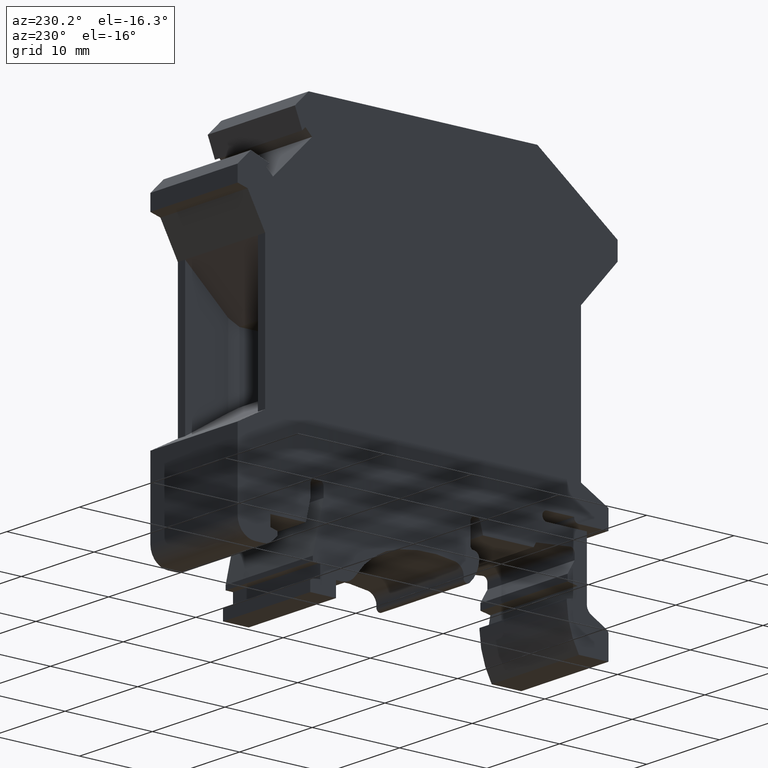
[diagram: clean part render]
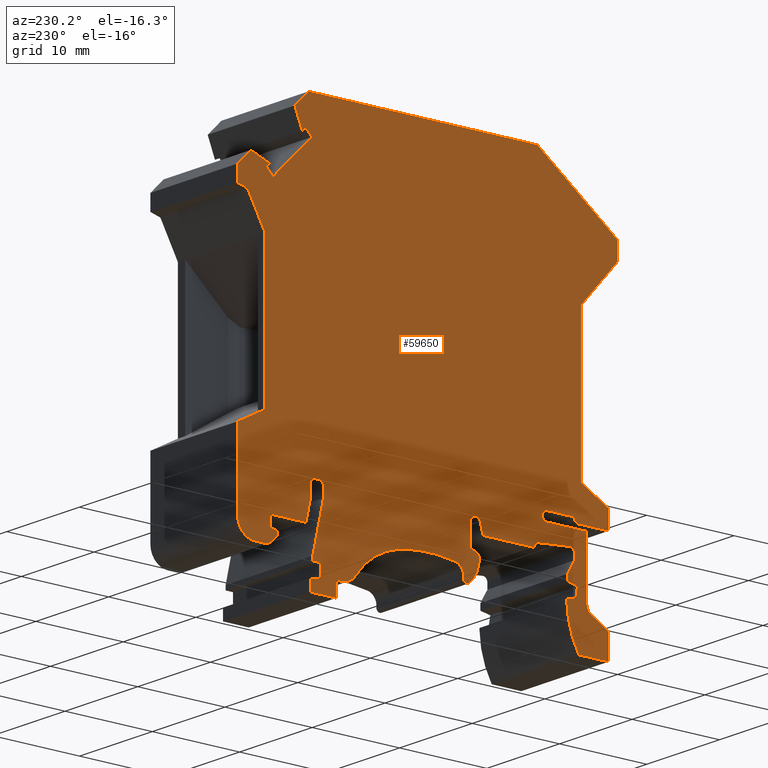
[diagram: same view with one face highlighted and labeled with its STEP entity id]
A machine part, auxiliary view. The second image highlights one B-rep face of the part: STEP entity #59650.
In plain terms, the highlighted planar face has unit normal (1, 0, 0).
Its self-contained STEP definition (entity closure, byte-faithful):
#100=CARTESIAN_POINT('',(-158.349315429515,262.087846858691,-12.));
#110=VERTEX_POINT('',#100);
#290=CARTESIAN_POINT('',(-157.82491100543,261.537846858677,-12.));
#300=VERTEX_POINT('',#290);
#330=CARTESIAN_POINT('',(-158.349315429515,261.562846858691,-12.));
#340=DIRECTION('',(0.,0.,1.));
#350=DIRECTION('',(1.,0.,0.));
#360=AXIS2_PLACEMENT_3D('',#330,#340,#350);
#370=CIRCLE('',#360,0.525000000000001);
#380=EDGE_CURVE('',#300,#110,#370,.T.);
#590=CARTESIAN_POINT('',(-158.344315429515,261.037846858691,-12.));
#600=VERTEX_POINT('',#590);
#770=CARTESIAN_POINT('',(-162.919315429515,261.037846858691,-12.));
#780=VERTEX_POINT('',#770);
#810=CARTESIAN_POINT('',(-151.979216999529,261.037846858691,-12.));
#820=DIRECTION('',(-1.,0.,0.));
#830=VECTOR('',#820,1.);
#840=LINE('',#810,#830);
#850=EDGE_CURVE('',#600,#780,#840,.T.);
#1110=CARTESIAN_POINT('',(-158.346815429515,261.56022483657,-12.));
#1120=DIRECTION('',(0.,0.,1.));
#1130=DIRECTION('',(1.,0.,0.));
#1140=AXIS2_PLACEMENT_3D('',#1110,#1120,#1130);
#1150=CIRCLE('',#1140,0.522383960103558);
#1160=EDGE_CURVE('',#600,#300,#1150,.T.);
#1370=CARTESIAN_POINT('',(-131.749315429515,260.037846858691,-12.));
#1380=VERTEX_POINT('',#1370);
#1560=CARTESIAN_POINT('',(-131.249315429515,259.537846858691,-12.));
#1570=VERTEX_POINT('',#1560);
#1600=CARTESIAN_POINT('',(-131.749315429515,259.537846858691,-12.));
#1610=DIRECTION('',(0.,0.,1.));
#1620=DIRECTION('',(1.,0.,0.));
#1630=AXIS2_PLACEMENT_3D('',#1600,#1610,#1620);
#1640=CIRCLE('',#1630,0.5);
#1650=EDGE_CURVE('',#1570,#1380,#1640,.T.);
#1880=CARTESIAN_POINT('',(-132.749315429515,258.463464775677,-12.));
#1890=VERTEX_POINT('',#1880);
#2040=CARTESIAN_POINT('',(-132.749315429515,259.537846858691,-12.));
#2050=VERTEX_POINT('',#2040);
#2080=CARTESIAN_POINT('',(-132.749315429515,86.824949462381,-12.));
#2090=DIRECTION('',(0.,1.,0.));
#2100=VECTOR('',#2090,1.);
#2110=LINE('',#2080,#2100);
#2120=EDGE_CURVE('',#1890,#2050,#2110,.T.);
#2430=CARTESIAN_POINT('',(-132.249315429515,260.037846858691,-12.));
#2440=VERTEX_POINT('',#2430);
#2470=CARTESIAN_POINT('',(-132.249315429515,259.537846858691,-12.));
#2480=DIRECTION('',(0.,0.,1.));
#2490=DIRECTION('',(1.,0.,0.));
#2500=AXIS2_PLACEMENT_3D('',#2470,#2480,#2490);
#2510=CIRCLE('',#2500,0.5);
#2520=EDGE_CURVE('',#2440,#2050,#2510,.T.);
#2770=CARTESIAN_POINT('',(-151.979216999529,260.037846858691,-12.));
#2780=DIRECTION('',(1.,0.,0.));
#2790=VECTOR('',#2780,1.);
#2800=LINE('',#2770,#2790);
#2810=EDGE_CURVE('',#2440,#1380,#2800,.T.);
#3020=CARTESIAN_POINT('',(-131.524315429515,252.937846858691,-12.));
#3030=VERTEX_POINT('',#3020);
#3150=CARTESIAN_POINT('',(-94.6979726805994,86.824949462381,-12.));
#3160=DIRECTION('',(-0.2164396139381,0.976296007119934,0.));
#3170=VECTOR('',#3160,1.);
#3180=LINE('',#3150,#3170);
#3190=EDGE_CURVE('',#3030,#1890,#3180,.T.);
#3400=CARTESIAN_POINT('',(-132.374315429515,250.937846858691,-12.));
#3410=VERTEX_POINT('',#3400);
#3580=CARTESIAN_POINT('',(-132.374315429515,252.437846858691,-12.));
#3590=VERTEX_POINT('',#3580);
#3620=CARTESIAN_POINT('',(-132.374315429515,86.824949462381,-12.));
#3630=DIRECTION('',(0.,1.,0.));
#3640=VECTOR('',#3630,1.);
#3650=LINE('',#3620,#3640);
#3660=EDGE_CURVE('',#3410,#3590,#3650,.T.);
#3870=CARTESIAN_POINT('',(-131.224315429515,250.812846858691,-12.));
#3880=VERTEX_POINT('',#3870);
#4000=CARTESIAN_POINT('',(-151.979216999529,253.068814420649,-12.));
#4010=DIRECTION('',(-0.994144463069457,0.108059180768418,0.));
#4020=VECTOR('',#4010,1.);
#4030=LINE('',#4000,#4020);
#4040=EDGE_CURVE('',#3880,#3410,#4030,.T.);
#4250=CARTESIAN_POINT('',(-147.833916836028,255.455833520763,-12.));
#4260=VERTEX_POINT('',#4250);
#4440=CARTESIAN_POINT('',(-141.363490825214,255.363860035049,-12.));
#4450=VERTEX_POINT('',#4440);
#4480=CARTESIAN_POINT('',(-144.824315429515,239.537846858691,-12.));
#4490=DIRECTION('',(0.,0.,1.));
#4500=DIRECTION('',(1.,0.,0.));
#4510=AXIS2_PLACEMENT_3D('',#4480,#4490,#4500);
#4520=CIRCLE('',#4510,16.2);
#4530=EDGE_CURVE('',#4450,#4260,#4520,.T.);
#4740=CARTESIAN_POINT('',(-160.619036097407,254.23784685869,-12.));
#4750=VERTEX_POINT('',#4740);
#4920=CARTESIAN_POINT('',(-160.619036097407,254.437846858691,-12.));
#4930=VERTEX_POINT('',#4920);
#4960=CARTESIAN_POINT('',(-160.619036097407,86.824949462381,-12.));
#4970=DIRECTION('',(0.,1.,0.));
#4980=VECTOR('',#4970,1.);
#4990=LINE('',#4960,#4980);
#5000=EDGE_CURVE('',#4750,#4930,#4990,.T.);
#5300=CARTESIAN_POINT('',(-161.644315429515,254.637846858691,-12.));
#5310=VERTEX_POINT('',#5300);
#5340=CARTESIAN_POINT('',(-151.979216999529,252.752487790716,-12.));
#5350=DIRECTION('',(-0.981500398133965,0.191460096267783,0.));
#5360=VECTOR('',#5350,1.);
#5370=LINE('',#5340,#5360);
#5380=EDGE_CURVE('',#4930,#5310,#5370,.T.);
#5680=CARTESIAN_POINT('',(-161.855907806365,255.837846858691,-12.));
#5690=VERTEX_POINT('',#5680);
#5720=CARTESIAN_POINT('',(-132.054373907683,86.824949462381,-12.));
#5730=DIRECTION('',(-0.173648177666936,0.984807753012207,0.));
#5740=VECTOR('',#5730,1.);
#5750=LINE('',#5720,#5740);
#5760=EDGE_CURVE('',#5310,#5690,#5750,.T.);
#6060=CARTESIAN_POINT('',(-160.719315429515,256.038258760797,-12.));
#6070=VERTEX_POINT('',#6060);
#6100=CARTESIAN_POINT('',(-151.979216999529,257.579373928052,-12.));
#6110=DIRECTION('',(0.984807753012199,0.173648177666984,0.));
#6120=VECTOR('',#6110,1.);
#6130=LINE('',#6100,#6120);
#6140=EDGE_CURVE('',#5690,#6070,#6130,.T.);
#6440=CARTESIAN_POINT('',(-160.719315429515,256.737846858691,-12.));
#6450=VERTEX_POINT('',#6440);
#6480=CARTESIAN_POINT('',(-160.719315429515,86.824949462381,-12.));
#6490=DIRECTION('',(0.,1.,0.));
#6500=VECTOR('',#6490,1.);
#6510=LINE('',#6480,#6500);
#6520=EDGE_CURVE('',#6070,#6450,#6510,.T.);
#6820=CARTESIAN_POINT('',(-161.519315429515,258.123487504746,-12.));
#6830=VERTEX_POINT('',#6820);
#6860=CARTESIAN_POINT('',(-62.6200583789661,86.824949462381,-12.));
#6870=DIRECTION('',(-0.500000000000001,0.866025403784438,0.));
#6880=VECTOR('',#6870,1.);
#6890=LINE('',#6860,#6880);
#6900=EDGE_CURVE('',#6450,#6830,#6890,.T.);
#7200=CARTESIAN_POINT('',(-161.519315429515,258.788102423456,-12.));
#7210=VERTEX_POINT('',#7200);
#7240=CARTESIAN_POINT('',(-161.519315429515,86.824949462381,-12.));
#7250=DIRECTION('',(0.,1.,0.));
#7260=VECTOR('',#7250,1.);
#7270=LINE('',#7240,#7260);
#7280=EDGE_CURVE('',#6830,#7210,#7270,.T.);
#7590=CARTESIAN_POINT('',(-160.979769085293,259.286536056609,-12.));
#7600=VERTEX_POINT('',#7590);
#7630=CARTESIAN_POINT('',(-161.019315429515,258.788102423456,-12.));
#7640=DIRECTION('',(0.,0.,1.));
#7650=DIRECTION('',(1.,0.,0.));
#7660=AXIS2_PLACEMENT_3D('',#7630,#7640,#7650);
#7670=CIRCLE('',#7660,0.499999999999944);
#7680=EDGE_CURVE('',#7600,#7210,#7670,.T.);
#7980=CARTESIAN_POINT('',(-157.10799056411,258.937846858691,-12.));
#7990=VERTEX_POINT('',#7980);
#8020=CARTESIAN_POINT('',(-151.979216999529,258.475953718172,-12.));
#8030=DIRECTION('',(0.995969175038443,-0.089696166993045,0.));
#8040=VECTOR('',#8030,1.);
#8050=LINE('',#8020,#8040);
#8060=EDGE_CURVE('',#7600,#7990,#8050,.T.);
#8360=CARTESIAN_POINT('',(-156.819315429515,258.437846858691,-12.));
#8370=VERTEX_POINT('',#8360);
#8400=CARTESIAN_POINT('',(-57.7385629213393,86.824949462381,-12.));
#8410=DIRECTION('',(0.500000000000018,-0.866025403784428,0.));
#8420=VECTOR('',#8410,1.);
#8430=LINE('',#8400,#8420);
#8440=EDGE_CURVE('',#7990,#8370,#8430,.T.);
#8740=CARTESIAN_POINT('',(-151.024315429515,258.437846858691,-12.));
#8750=VERTEX_POINT('',#8740);
#8780=CARTESIAN_POINT('',(-151.979216999529,258.437846858691,-12.));
#8790=DIRECTION('',(1.,0.,0.));
#8800=VECTOR('',#8790,1.);
#8810=LINE('',#8780,#8800);
#8820=EDGE_CURVE('',#8370,#8750,#8810,.T.);
#9120=CARTESIAN_POINT('',(-150.69489614078,259.667256381242,-12.));
#9130=VERTEX_POINT('',#9120);
#9160=CARTESIAN_POINT('',(-197.007852697615,86.824949462381,-12.));
#9170=DIRECTION('',(0.258819045102487,0.965925826289077,0.));
#9180=VECTOR('',#9170,1.);
#9190=LINE('',#9160,#9180);
#9200=EDGE_CURVE('',#8750,#9130,#9190,.T.);
#9510=CARTESIAN_POINT('',(-150.211933227636,260.037846858691,-12.));
#9520=VERTEX_POINT('',#9510);
#9550=CARTESIAN_POINT('',(-150.211933227636,259.537846858691,-12.));
#9560=DIRECTION('',(0.,0.,1.));
#9570=DIRECTION('',(1.,0.,0.));
#9580=AXIS2_PLACEMENT_3D('',#9550,#9560,#9570);
#9590=CIRCLE('',#9580,0.5);
#9600=EDGE_CURVE('',#9520,#9130,#9590,.T.);
#9900=CARTESIAN_POINT('',(-150.099315429515,260.037846858691,-12.));
#9910=VERTEX_POINT('',#9900);
#9940=CARTESIAN_POINT('',(-151.979216999529,260.037846858691,-12.));
#9950=DIRECTION('',(1.,0.,0.));
#9960=VECTOR('',#9950,1.);
#9970=LINE('',#9940,#9960);
#9980=EDGE_CURVE('',#9520,#9910,#9970,.T.);
#10290=CARTESIAN_POINT('',(-149.599315429515,259.537846858691,-12.));
#10300=VERTEX_POINT('',#10290);
#10330=CARTESIAN_POINT('',(-150.099315429515,259.537846858691,-12.));
#10340=DIRECTION('',(0.,0.,1.));
#10350=DIRECTION('',(1.,0.,0.));
#10360=AXIS2_PLACEMENT_3D('',#10330,#10340,#10350);
#10370=CIRCLE('',#10360,0.5);
#10380=EDGE_CURVE('',#10300,#9910,#10370,.T.);
#10680=CARTESIAN_POINT('',(-149.599315429515,257.187846858691,-12.));
#10690=VERTEX_POINT('',#10680);
#10720=CARTESIAN_POINT('',(-149.599315429515,86.824949462381,-12.));
#10730=DIRECTION('',(0.,-1.,0.));
#10740=VECTOR('',#10730,1.);
#10750=LINE('',#10720,#10740);
#10760=EDGE_CURVE('',#10300,#10690,#10750,.T.);
#11070=CARTESIAN_POINT('',(-149.899315429515,256.887846858691,-12.));
#11080=VERTEX_POINT('',#11070);
#11110=CARTESIAN_POINT('',(-149.899315429515,257.187846858691,-12.));
#11120=DIRECTION('',(0.,0.,1.));
#11130=DIRECTION('',(1.,0.,0.));
#11140=AXIS2_PLACEMENT_3D('',#11110,#11120,#11130);
#11150=CIRCLE('',#11140,0.299999999999983);
#11160=EDGE_CURVE('',#11080,#10690,#11150,.T.);
#11470=CARTESIAN_POINT('',(-150.598693690808,256.158350288869,-12.));
#11480=VERTEX_POINT('',#11470);
#11510=CARTESIAN_POINT('',(-149.899315429515,256.187846858691,-12.));
#11520=DIRECTION('',(0.,0.,1.));
#11530=DIRECTION('',(1.,0.,0.));
#11540=AXIS2_PLACEMENT_3D('',#11510,#11520,#11530);
#11550=CIRCLE('',#11540,0.700000000000017);
#11560=EDGE_CURVE('',#11080,#11480,#11550,.T.);
#11870=CARTESIAN_POINT('',(-149.463403060009,253.783417626724,-12.));
#11880=VERTEX_POINT('',#11870);
#11910=CARTESIAN_POINT('',(-147.251669154621,256.299512444444,-12.));
#11920=DIRECTION('',(0.,0.,1.));
#11930=DIRECTION('',(1.,0.,0.));
#11940=AXIS2_PLACEMENT_3D('',#11910,#11920,#11930);
#11950=CIRCLE('',#11940,3.34999999999999);
#11960=EDGE_CURVE('',#11480,#11880,#11950,.T.);
#12270=CARTESIAN_POINT('',(-148.802232421763,254.13206599343,-12.));
#12280=VERTEX_POINT('',#12270);
#12310=CARTESIAN_POINT('',(-149.199315429515,254.083846858691,-12.));
#12320=DIRECTION('',(0.,0.,1.));
#12330=DIRECTION('',(1.,0.,0.));
#12340=AXIS2_PLACEMENT_3D('',#12310,#12320,#12330);
#12350=CIRCLE('',#12340,0.39999999999994);
#12360=EDGE_CURVE('',#11880,#12280,#12350,.T.);
#12620=CARTESIAN_POINT('',(-147.610983398509,254.276723397647,-12.));
#12630=DIRECTION('',(0.,0.,1.));
#12640=DIRECTION('',(1.,0.,0.));
#12650=AXIS2_PLACEMENT_3D('',#12620,#12630,#12640);
#12660=CIRCLE('',#12650,1.20000000000004);
#12670=EDGE_CURVE('',#4260,#12280,#12660,.T.);
#12980=CARTESIAN_POINT('',(-136.465960346117,252.059986464199,-12.));
#12990=VERTEX_POINT('',#12980);
#13020=CARTESIAN_POINT('',(-143.072540012523,247.54854488623,-12.));
#13030=DIRECTION('',(0.,0.,1.));
#13040=DIRECTION('',(1.,0.,0.));
#13050=AXIS2_PLACEMENT_3D('',#13020,#13030,#13040);
#13060=CIRCLE('',#13050,8.);
#13070=EDGE_CURVE('',#12990,#4450,#13060,.T.);
#13380=CARTESIAN_POINT('',(-134.814315429515,251.187846858691,-12.));
#13390=VERTEX_POINT('',#13380);
#13420=CARTESIAN_POINT('',(-134.814315429515,253.187846858691,-12.));
#13430=DIRECTION('',(0.,0.,1.));
#13440=DIRECTION('',(1.,0.,0.));
#13450=AXIS2_PLACEMENT_3D('',#13420,#13430,#13440);
#13460=CIRCLE('',#13450,1.99999999999998);
#13470=EDGE_CURVE('',#12990,#13390,#13460,.T.);
#13770=CARTESIAN_POINT('',(-134.174315429515,251.187846858691,-12.));
#13780=VERTEX_POINT('',#13770);
#13810=CARTESIAN_POINT('',(-151.979216999529,251.187846858691,-12.));
#13820=DIRECTION('',(1.,0.,0.));
#13830=VECTOR('',#13820,1.);
#13840=LINE('',#13810,#13830);
#13850=EDGE_CURVE('',#13390,#13780,#13840,.T.);
#14150=CARTESIAN_POINT('',(-134.174315429515,249.537846858691,-12.));
#14160=VERTEX_POINT('',#14150);
#14190=CARTESIAN_POINT('',(-134.174315429515,86.824949462381,-12.));
#14200=DIRECTION('',(0.,-1.,0.));
#14210=VECTOR('',#14200,1.);
#14220=LINE('',#14190,#14210);
#14230=EDGE_CURVE('',#13780,#14160,#14220,.T.);
#14530=CARTESIAN_POINT('',(-131.224315429515,249.537846858691,-12.));
#14540=VERTEX_POINT('',#14530);
#14570=CARTESIAN_POINT('',(-151.979216999529,249.537846858691,-12.));
#14580=DIRECTION('',(1.,0.,0.));
#14590=VECTOR('',#14580,1.);
#14600=LINE('',#14570,#14590);
#14610=EDGE_CURVE('',#14160,#14540,#14600,.T.);
#14860=CARTESIAN_POINT('',(-131.224315429515,86.824949462381,-12.));
#14870=DIRECTION('',(0.,1.,0.));
#14880=VECTOR('',#14870,1.);
#14890=LINE('',#14860,#14880);
#14900=EDGE_CURVE('',#14540,#3880,#14890,.T.);
#15200=CARTESIAN_POINT('',(-131.524315429515,252.437846858691,-12.));
#15210=VERTEX_POINT('',#15200);
#15240=CARTESIAN_POINT('',(-151.979216999529,252.437846858691,-12.));
#15250=DIRECTION('',(1.,0.,0.));
#15260=VECTOR('',#15250,1.);
#15270=LINE('',#15240,#15260);
#15280=EDGE_CURVE('',#3590,#15210,#15270,.T.);
#15530=CARTESIAN_POINT('',(-131.524315429515,86.824949462381,-12.));
#15540=DIRECTION('',(0.,1.,0.));
#15550=VECTOR('',#15540,1.);
#15560=LINE('',#15530,#15550);
#15570=EDGE_CURVE('',#15210,#3030,#15560,.T.);
#15870=CARTESIAN_POINT('',(-131.249315429515,258.205968823113,-12.));
#15880=VERTEX_POINT('',#15870);
#15910=CARTESIAN_POINT('',(-131.249315429515,86.824949462381,-12.));
#15920=DIRECTION('',(0.,-1.,0.));
#15930=VECTOR('',#15920,1.);
#15940=LINE('',#15910,#15930);
#15950=EDGE_CURVE('',#1570,#15880,#15940,.T.);
#16250=CARTESIAN_POINT('',(-130.724315429515,255.837846858691,-12.));
#16260=VERTEX_POINT('',#16250);
#16290=CARTESIAN_POINT('',(-93.2550581589328,86.824949462381,-12.));
#16300=DIRECTION('',(0.216439613938111,-0.976296007119932,0.));
#16310=VECTOR('',#16300,1.);
#16320=LINE('',#16290,#16310);
#16330=EDGE_CURVE('',#15880,#16260,#16320,.T.);
#16630=CARTESIAN_POINT('',(-126.649315429515,255.837846858691,-12.));
#16640=VERTEX_POINT('',#16630);
#16670=CARTESIAN_POINT('',(-151.979216999529,255.837846858691,-12.));
#16680=DIRECTION('',(1.,0.,0.));
#16690=VECTOR('',#16680,1.);
#16700=LINE('',#16670,#16690);
#16710=EDGE_CURVE('',#16260,#16640,#16700,.T.);
#17010=CARTESIAN_POINT('',(-126.649315429515,254.637846858691,-12.));
#17020=VERTEX_POINT('',#17010);
#17050=CARTESIAN_POINT('',(-126.649315429515,86.824949462381,-12.));
#17060=DIRECTION('',(0.,-1.,0.));
#17070=VECTOR('',#17060,1.);
#17080=LINE('',#17050,#17070);
#17090=EDGE_CURVE('',#16640,#17020,#17080,.T.);
#17390=CARTESIAN_POINT('',(-127.449315429515,254.437846858691,-12.));
#17400=VERTEX_POINT('',#17390);
#17430=CARTESIAN_POINT('',(-151.979216999529,248.305371466187,-12.));
#17440=DIRECTION('',(-0.970142500145328,-0.242535625036347,0.));
#17450=VECTOR('',#17440,1.);
#17460=LINE('',#17430,#17450);
#17470=EDGE_CURVE('',#17020,#17400,#17460,.T.);
#17770=CARTESIAN_POINT('',(-127.449315429515,253.987846858691,-12.));
#17780=VERTEX_POINT('',#17770);
#17810=CARTESIAN_POINT('',(-127.449315429515,86.824949462381,-12.));
#17820=DIRECTION('',(0.,-1.,0.));
#17830=VECTOR('',#17820,1.);
#17840=LINE('',#17810,#17830);
#17850=EDGE_CURVE('',#17400,#17780,#17840,.T.);
#18150=CARTESIAN_POINT('',(-126.938655257735,253.477186686911,-12.));
#18160=VERTEX_POINT('',#18150);
#18190=CARTESIAN_POINT('',(-151.979216999529,278.517748428702,-12.));
#18200=DIRECTION('',(0.707106781186589,-0.707106781186506,0.));
#18210=VECTOR('',#18200,1.);
#18220=LINE('',#18190,#18210);
#18230=EDGE_CURVE('',#17780,#18160,#18220,.T.);
#18540=CARTESIAN_POINT('',(-125.877995085955,253.037846858691,-12.));
#18550=VERTEX_POINT('',#18540);
#18580=CARTESIAN_POINT('',(-125.877995085955,254.537846858691,-12.));
#18590=DIRECTION('',(0.,0.,1.));
#18600=DIRECTION('',(1.,0.,0.));
#18610=AXIS2_PLACEMENT_3D('',#18580,#18590,#18600);
#18620=CIRCLE('',#18610,1.49999999999997);
#18630=EDGE_CURVE('',#18160,#18550,#18620,.T.);
#18930=CARTESIAN_POINT('',(-124.904315429515,253.037846858691,-12.));
#18940=VERTEX_POINT('',#18930);
#18970=CARTESIAN_POINT('',(-151.979216999529,253.037846858691,-12.));
#18980=DIRECTION('',(1.,0.,0.));
#18990=VECTOR('',#18980,1.);
#19000=LINE('',#18970,#18990);
#19010=EDGE_CURVE('',#18550,#18940,#19000,.T.);
#19320=CARTESIAN_POINT('',(-122.899315429515,255.037846858691,-12.));
#19330=VERTEX_POINT('',#19320);
#19360=CARTESIAN_POINT('',(-124.901815429515,255.040346858691,-12.));
#19370=DIRECTION('',(0.,0.,1.));
#19380=DIRECTION('',(1.,0.,0.));
#19390=AXIS2_PLACEMENT_3D('',#19360,#19370,#19380);
#19400=CIRCLE('',#19390,2.00250156054873);
#19410=EDGE_CURVE('',#18940,#19330,#19400,.T.);
#19580=CARTESIAN_POINT('',(-122.899315429516,0.,-12.));
#19590=DIRECTION('',(3.54156877505747E-15,1.,0.));
#19600=VECTOR('',#19590,1.);
#19610=LINE('',#19580,#19600);
#19620=CARTESIAN_POINT('',(-122.899315429515,263.637846858691,-12.));
#19630=VERTEX_POINT('',#19620);
#19640=EDGE_CURVE('',#19330,#19630,#19610,.T.);
#20000=CARTESIAN_POINT('',(-161.467208648328,262.087846858691,-12.));
#20010=VERTEX_POINT('',#20000);
#20130=CARTESIAN_POINT('',(-151.979216999529,262.087846858691,-12.));
#20140=DIRECTION('',(1.,0.,0.));
#20150=VECTOR('',#20140,1.);
#20160=LINE('',#20130,#20150);
#20170=EDGE_CURVE('',#20010,#110,#20160,.T.);
#20560=CARTESIAN_POINT('',(-124.049315429515,285.237846858691,-12.));
#20570=VERTEX_POINT('',#20560);
#20600=CARTESIAN_POINT('',(-278.231935352737,0.,-12.));
#20610=DIRECTION('',(0.475517034364532,0.879706513576636,0.));
#20620=VECTOR('',#20610,1.);
#20630=LINE('',#20600,#20620);
#20640=CARTESIAN_POINT('',(-126.049315429515,281.537846858681,-12.));
#20650=VERTEX_POINT('',#20640);
#20660=EDGE_CURVE('',#20650,#20570,#20630,.T.);
#22300=CARTESIAN_POINT('',(-161.967208648328,261.537846858691,-12.));
#22310=VERTEX_POINT('',#22300);
#22490=CARTESIAN_POINT('',(-161.467208648328,262.037846858691,-12.));
#22500=VERTEX_POINT('',#22490);
#22530=CARTESIAN_POINT('',(-161.967208648328,262.037846858691,-12.));
#22540=DIRECTION('',(0.,0.,1.));
#22550=DIRECTION('',(1.,0.,0.));
#22560=AXIS2_PLACEMENT_3D('',#22530,#22540,#22550);
#22570=CIRCLE('',#22560,0.5);
#22580=EDGE_CURVE('',#22310,#22500,#22570,.T.);
#25010=CARTESIAN_POINT('',(-126.049315429515,265.337846858669,-12.));
#25020=VERTEX_POINT('',#25010);
#25050=CARTESIAN_POINT('',(0.,197.31123218329,-12.));
#25060=DIRECTION('',(-0.880022172672199,0.474932601118624,0.));
#25070=VECTOR('',#25060,1.);
#25080=LINE('',#25050,#25070);
#25090=EDGE_CURVE('',#19630,#25020,#25080,.T.);
#25480=CARTESIAN_POINT('',(-126.049315429515,86.824949462381,-12.));
#25490=DIRECTION('',(0.,-1.,0.));
#25500=VECTOR('',#25490,1.);
#25510=LINE('',#25480,#25500);
#25520=EDGE_CURVE('',#20650,#25020,#25510,.T.);
#25740=CARTESIAN_POINT('',(-162.919315429515,254.347247935449,-12.));
#25750=VERTEX_POINT('',#25740);
#25830=CARTESIAN_POINT('',(-163.419315429515,253.481222531665,-12.));
#25840=VERTEX_POINT('',#25830);
#25870=CARTESIAN_POINT('',(-163.919315429515,254.347247935449,-12.));
#25880=DIRECTION('',(0.,0.,1.));
#25890=DIRECTION('',(1.,0.,0.));
#25900=AXIS2_PLACEMENT_3D('',#25870,#25880,#25890);
#25910=CIRCLE('',#25900,0.999999999999959);
#25920=EDGE_CURVE('',#25840,#25750,#25910,.T.);
#26150=CARTESIAN_POINT('',(-162.01279359564,249.537846858691,-12.));
#26160=VERTEX_POINT('',#26150);
#26270=CARTESIAN_POINT('',(-170.11549221843,254.497310038134,-12.));
#26280=DIRECTION('',(0.,0.,1.));
#26290=DIRECTION('',(1.,0.,0.));
#26300=AXIS2_PLACEMENT_3D('',#26270,#26280,#26290);
#26310=CIRCLE('',#26300,9.5);
#26320=EDGE_CURVE('',#26160,#4750,#26310,.T.);
#26550=CARTESIAN_POINT('',(-165.399315429515,249.537846858691,-12.));
#26560=VERTEX_POINT('',#26550);
#26660=CARTESIAN_POINT('',(-151.979216999529,249.537846858691,-12.));
#26670=DIRECTION('',(1.,0.,0.));
#26680=VECTOR('',#26670,1.);
#26690=LINE('',#26660,#26680);
#26700=EDGE_CURVE('',#26560,#26160,#26690,.T.);
#26960=CARTESIAN_POINT('',(-165.399315429515,86.824949462381,-12.));
#26970=DIRECTION('',(0.,-1.,0.));
#26980=VECTOR('',#26970,1.);
#26990=LINE('',#26960,#26980);
#27000=CARTESIAN_POINT('',(-165.399315429515,252.177846858691,-12.));
#27010=VERTEX_POINT('',#27000);
#27020=EDGE_CURVE('',#27010,#26560,#26990,.T.);
#27350=CARTESIAN_POINT('',(-164.919315429515,252.037846858691,-12.));
#27360=DIRECTION('',(0.,0.,1.));
#27370=DIRECTION('',(1.,0.,0.));
#27380=AXIS2_PLACEMENT_3D('',#27350,#27360,#27370);
#27390=CIRCLE('',#27380,0.5);
#27400=CARTESIAN_POINT('',(-165.169315429515,252.470859560583,-12.));
#27410=VERTEX_POINT('',#27400);
#27420=EDGE_CURVE('',#27410,#27010,#27390,.T.);
#27720=CARTESIAN_POINT('',(-151.979216999529,260.086166439772,-12.));
#27730=DIRECTION('',(-0.866025403784447,-0.499999999999985,0.));
#27740=VECTOR('',#27730,1.);
#27750=LINE('',#27720,#27740);
#27760=EDGE_CURVE('',#25840,#27410,#27750,.T.);
#28130=CARTESIAN_POINT('',(-162.919315429515,86.824949462381,-12.));
#28140=DIRECTION('',(0.,-1.,0.));
#28150=VECTOR('',#28140,1.);
#28160=LINE('',#28130,#28150);
#28170=EDGE_CURVE('',#780,#25750,#28160,.T.);
#32120=CARTESIAN_POINT('',(-161.467208648328,86.824949462381,-12.));
#32130=DIRECTION('',(0.,1.,0.));
#32140=VECTOR('',#32130,1.);
#32150=LINE('',#32120,#32140);
#32160=EDGE_CURVE('',#22500,#20010,#32150,.T.);
#32370=CARTESIAN_POINT('',(-165.399315429515,261.537846858691,-12.));
#32380=VERTEX_POINT('',#32370);
#32430=CARTESIAN_POINT('',(-151.979216999529,261.537846858691,-12.));
#32440=DIRECTION('',(1.,0.,0.));
#32450=VECTOR('',#32440,1.);
#32460=LINE('',#32430,#32450);
#32470=EDGE_CURVE('',#32380,#22310,#32460,.T.);
#32630=CARTESIAN_POINT('',(-165.399315429515,263.637846858691,-12.));
#32640=VERTEX_POINT('',#32630);
#32690=CARTESIAN_POINT('',(-165.399315429515,0.,-12.));
#32700=DIRECTION('',(0.,-1.,0.));
#32710=VECTOR('',#32700,1.);
#32720=LINE('',#32690,#32710);
#32730=EDGE_CURVE('',#32640,#32380,#32720,.T.);
#32940=CARTESIAN_POINT('',(-162.249315429515,265.390890336955,-12.));
#32950=VERTEX_POINT('',#32940);
#33160=CARTESIAN_POINT('',(0.,355.686161532713,-12.));
#33170=DIRECTION('',(0.87379863009447,0.486287933271048,0.));
#33180=VECTOR('',#33170,1.);
#33190=LINE('',#33160,#33180);
#33200=EDGE_CURVE('',#32640,#32950,#33190,.T.);
#36070=CARTESIAN_POINT('',(-131.430604655285,291.329008023926,-12.));
#36080=VERTEX_POINT('',#36070);
#36160=CARTESIAN_POINT('',(-130.674000399415,292.085612279795,-12.));
#36170=VERTEX_POINT('',#36160);
#36200=CARTESIAN_POINT('',(-335.934663216827,86.824949462381,-12.));
#36210=DIRECTION('',(0.707106781186543,0.707106781186552,0.));
#36220=VECTOR('',#36210,1.);
#36230=LINE('',#36200,#36220);
#36240=EDGE_CURVE('',#36080,#36170,#36230,.T.);
#37320=CARTESIAN_POINT('',(-162.249315429515,281.651800347058,-12.));
#37330=VERTEX_POINT('',#37320);
#37400=CARTESIAN_POINT('',(-162.249315429515,0.,-12.));
#37410=DIRECTION('',(1.22070037156466E-15,-1.,0.));
#37420=VECTOR('',#37410,1.);
#37430=LINE('',#37400,#37420);
#37440=EDGE_CURVE('',#37330,#32950,#37430,.T.);
#37650=CARTESIAN_POINT('',(-166.449315429515,286.437846858686,-12.));
#37660=VERTEX_POINT('',#37650);
#37710=CARTESIAN_POINT('',(84.9145093648431,0.,-12.));
#37720=DIRECTION('',(-0.65958989040874,0.751625689070422,0.));
#37730=VECTOR('',#37720,1.);
#37740=LINE('',#37710,#37730);
#37750=EDGE_CURVE('',#37330,#37660,#37740,.T.);
#37930=CARTESIAN_POINT('',(-166.449315429515,86.824949462381,-12.));
#37940=DIRECTION('',(0.,1.,0.));
#37950=VECTOR('',#37940,1.);
#37960=LINE('',#37930,#37950);
#37970=CARTESIAN_POINT('',(-166.449315429515,288.437846858691,-12.));
#37980=VERTEX_POINT('',#37970);
#37990=EDGE_CURVE('',#37660,#37980,#37960,.T.);
#39880=CARTESIAN_POINT('',(-151.979216999529,299.447704359767,-12.));
#39890=DIRECTION('',(0.795828694120857,0.605521832483265,0.));
#39900=VECTOR('',#39890,1.);
#39910=LINE('',#39880,#39900);
#39920=CARTESIAN_POINT('',(-157.249315429515,295.437846858691,-12.));
#39930=VERTEX_POINT('',#39920);
#39940=EDGE_CURVE('',#37980,#39930,#39910,.T.);
#40290=CARTESIAN_POINT('',(-122.899315429515,287.287846858691,-12.));
#40300=VERTEX_POINT('',#40290);
#40380=CARTESIAN_POINT('',(-124.432259682289,288.820791111465,-12.));
#40390=VERTEX_POINT('',#40380);
#40420=CARTESIAN_POINT('',(77.5635819667862,86.824949462381,-12.));
#40430=DIRECTION('',(-0.707106781186533,0.707106781186563,0.));
#40440=VECTOR('',#40430,1.);
#40450=LINE('',#40420,#40440);
#40460=EDGE_CURVE('',#40300,#40390,#40450,.T.);
#40670=CARTESIAN_POINT('',(-126.95815426428,286.856557632921,-12.));
#40680=VERTEX_POINT('',#40670);
#40730=CARTESIAN_POINT('',(-151.979216999529,311.877620368169,-12.));
#40740=DIRECTION('',(0.707106781186574,-0.707106781186522,0.));
#40750=VECTOR('',#40740,1.);
#40760=LINE('',#40730,#40750);
#40770=EDGE_CURVE('',#36080,#40680,#40760,.T.);
#41470=CARTESIAN_POINT('',(-126.574830594265,287.986442474645,-12.));
#41480=VERTEX_POINT('',#41470);
#41560=CARTESIAN_POINT('',(-126.20155000841,287.613161888791,-12.));
#41570=VERTEX_POINT('',#41560);
#41600=CARTESIAN_POINT('',(-151.979216999529,313.390828879896,-12.));
#41610=DIRECTION('',(0.707106781186733,-0.707106781186362,0.));
#41620=VECTOR('',#41610,1.);
#41630=LINE('',#41600,#41620);
#41640=EDGE_CURVE('',#41480,#41570,#41630,.T.);
#42550=CARTESIAN_POINT('',(-122.899315429515,285.545988429986,-12.));
#42560=VERTEX_POINT('',#42550);
#42590=CARTESIAN_POINT('',(0.,318.476760749663,-12.));
#42600=DIRECTION('',(0.965925826289069,0.258819045102519,0.));
#42610=VECTOR('',#42600,1.);
#42620=LINE('',#42590,#42610);
#42630=EDGE_CURVE('',#20570,#42560,#42620,.T.);
#43460=CARTESIAN_POINT('',(-130.300719813561,291.712331693941,-12.));
#43470=VERTEX_POINT('',#43460);
#43500=CARTESIAN_POINT('',(74.5866624179724,86.824949462381,-12.));
#43510=DIRECTION('',(0.707106781186501,-0.707106781186594,0.));
#43520=VECTOR('',#43510,1.);
#43530=LINE('',#43500,#43520);
#43540=EDGE_CURVE('',#36170,#43470,#43530,.T.);
#43740=CARTESIAN_POINT('',(-151.979216999529,261.835494897675,-12.));
#43750=DIRECTION('',(-0.707106781186599,-0.707106781186496,0.));
#43760=VECTOR('',#43750,1.);
#43770=LINE('',#43740,#43760);
#43780=EDGE_CURVE('',#41570,#40680,#43770,.T.);
#45330=CARTESIAN_POINT('',(-122.899315429515,86.824949462381,-12.));
#45340=DIRECTION('',(0.,1.,0.));
#45350=VECTOR('',#45340,1.);
#45360=LINE('',#45330,#45350);
#45370=EDGE_CURVE('',#42560,#40300,#45360,.T.);
#46320=CARTESIAN_POINT('',(-129.466371176741,293.854902605917,-12.));
#46330=VERTEX_POINT('',#46320);
#46360=CARTESIAN_POINT('',(-210.086880967435,86.824949462381,-12.));
#46370=DIRECTION('',(0.362871839026659,0.931839057156015,0.));
#46380=VECTOR('',#46370,1.);
#46390=LINE('',#46360,#46380);
#46400=EDGE_CURVE('',#43470,#46330,#46390,.T.);
#46630=CARTESIAN_POINT('',(-131.049315429515,295.437846858691,-12.));
#46640=VERTEX_POINT('',#46630);
#46670=CARTESIAN_POINT('',(77.5635819667818,86.824949462381,-12.));
#46680=DIRECTION('',(-0.707106781186526,0.707106781186569,0.));
#46690=VECTOR('',#46680,1.);
#46700=LINE('',#46670,#46690);
#46710=EDGE_CURVE('',#46330,#46640,#46700,.T.);
#49570=CARTESIAN_POINT('',(-151.979216999529,295.437846858691,-12.));
#49580=DIRECTION('',(-1.,0.,0.));
#49590=VECTOR('',#49580,1.);
#49600=LINE('',#49570,#49590);
#49610=EDGE_CURVE('',#46640,#39930,#49600,.T.);
#50570=CARTESIAN_POINT('',(-151.979216999529,278.093600633098,-12.));
#50580=DIRECTION('',(-0.931839057156038,-0.362871839026599,0.));
#50590=VECTOR('',#50580,1.);
#50600=LINE('',#50570,#50590);
#50610=EDGE_CURVE('',#40390,#41480,#50600,.T.);
#58750=CARTESIAN_POINT('',(0.,0.,-12.));
#58760=DIRECTION('',(0.,0.,1.));
#58770=DIRECTION('',(1.,0.,0.));
#58780=AXIS2_PLACEMENT_3D('',#58750,#58760,#58770);
#58790=PLANE('',#58780);
#58800=ORIENTED_EDGE('',*,*,#37990,.T.);
#58810=ORIENTED_EDGE('',*,*,#37750,.T.);
#58820=ORIENTED_EDGE('',*,*,#37440,.F.);
#58830=ORIENTED_EDGE('',*,*,#33200,.T.);
#58840=ORIENTED_EDGE('',*,*,#32730,.F.);
#58850=ORIENTED_EDGE('',*,*,#32470,.F.);
#58860=ORIENTED_EDGE('',*,*,#22580,.F.);
#58870=ORIENTED_EDGE('',*,*,#32160,.F.);
#58880=ORIENTED_EDGE('',*,*,#20170,.F.);
#58890=ORIENTED_EDGE('',*,*,#380,.T.);
#58900=ORIENTED_EDGE('',*,*,#1160,.T.);
#58910=ORIENTED_EDGE('',*,*,#850,.F.);
#58920=ORIENTED_EDGE('',*,*,#28170,.F.);
#58930=ORIENTED_EDGE('',*,*,#25920,.T.);
#58940=ORIENTED_EDGE('',*,*,#27760,.F.);
#58950=ORIENTED_EDGE('',*,*,#27420,.F.);
#58960=ORIENTED_EDGE('',*,*,#27020,.F.);
#58970=ORIENTED_EDGE('',*,*,#26700,.F.);
#58980=ORIENTED_EDGE('',*,*,#26320,.F.);
#58990=ORIENTED_EDGE('',*,*,#5000,.F.);
#59000=ORIENTED_EDGE('',*,*,#5380,.F.);
#59010=ORIENTED_EDGE('',*,*,#5760,.F.);
#59020=ORIENTED_EDGE('',*,*,#6140,.F.);
#59030=ORIENTED_EDGE('',*,*,#6520,.F.);
#59040=ORIENTED_EDGE('',*,*,#6900,.F.);
#59050=ORIENTED_EDGE('',*,*,#7280,.F.);
#59060=ORIENTED_EDGE('',*,*,#7680,.T.);
#59070=ORIENTED_EDGE('',*,*,#8060,.F.);
#59080=ORIENTED_EDGE('',*,*,#8440,.F.);
#59090=ORIENTED_EDGE('',*,*,#8820,.F.);
#59100=ORIENTED_EDGE('',*,*,#9200,.F.);
#59110=ORIENTED_EDGE('',*,*,#9600,.T.);
#59120=ORIENTED_EDGE('',*,*,#9980,.F.);
#59130=ORIENTED_EDGE('',*,*,#10380,.T.);
#59140=ORIENTED_EDGE('',*,*,#10760,.F.);
#59150=ORIENTED_EDGE('',*,*,#11160,.T.);
#59160=ORIENTED_EDGE('',*,*,#11560,.F.);
#59170=ORIENTED_EDGE('',*,*,#11960,.F.);
#59180=ORIENTED_EDGE('',*,*,#12360,.F.);
#59190=ORIENTED_EDGE('',*,*,#12670,.T.);
#59200=ORIENTED_EDGE('',*,*,#4530,.T.);
#59210=ORIENTED_EDGE('',*,*,#13070,.T.);
#59220=ORIENTED_EDGE('',*,*,#13470,.F.);
#59230=ORIENTED_EDGE('',*,*,#13850,.F.);
#59240=ORIENTED_EDGE('',*,*,#14230,.F.);
#59250=ORIENTED_EDGE('',*,*,#14610,.F.);
#59260=ORIENTED_EDGE('',*,*,#14900,.F.);
#59270=ORIENTED_EDGE('',*,*,#4040,.F.);
#59280=ORIENTED_EDGE('',*,*,#3660,.F.);
#59290=ORIENTED_EDGE('',*,*,#15280,.F.);
#59300=ORIENTED_EDGE('',*,*,#15570,.F.);
#59310=ORIENTED_EDGE('',*,*,#3190,.F.);
#59320=ORIENTED_EDGE('',*,*,#2120,.F.);
#59330=ORIENTED_EDGE('',*,*,#2520,.T.);
#59340=ORIENTED_EDGE('',*,*,#2810,.F.);
#59350=ORIENTED_EDGE('',*,*,#1650,.T.);
#59360=ORIENTED_EDGE('',*,*,#15950,.F.);
#59370=ORIENTED_EDGE('',*,*,#16330,.F.);
#59380=ORIENTED_EDGE('',*,*,#16710,.F.);
#59390=ORIENTED_EDGE('',*,*,#17090,.F.);
#59400=ORIENTED_EDGE('',*,*,#17470,.F.);
#59410=ORIENTED_EDGE('',*,*,#17850,.F.);
#59420=ORIENTED_EDGE('',*,*,#18230,.F.);
#59430=ORIENTED_EDGE('',*,*,#18630,.F.);
#59440=ORIENTED_EDGE('',*,*,#19010,.F.);
#59450=ORIENTED_EDGE('',*,*,#19410,.F.);
#59460=ORIENTED_EDGE('',*,*,#19640,.F.);
#59470=ORIENTED_EDGE('',*,*,#25090,.F.);
#59480=ORIENTED_EDGE('',*,*,#25520,.T.);
#59490=ORIENTED_EDGE('',*,*,#20660,.F.);
#59500=ORIENTED_EDGE('',*,*,#42630,.F.);
#59510=ORIENTED_EDGE('',*,*,#45370,.F.);
#59520=ORIENTED_EDGE('',*,*,#40460,.F.);
#59530=ORIENTED_EDGE('',*,*,#50610,.F.);
#59540=ORIENTED_EDGE('',*,*,#41640,.F.);
#59550=ORIENTED_EDGE('',*,*,#43780,.F.);
#59560=ORIENTED_EDGE('',*,*,#40770,.T.);
#59570=ORIENTED_EDGE('',*,*,#36240,.F.);
#59580=ORIENTED_EDGE('',*,*,#43540,.F.);
#59590=ORIENTED_EDGE('',*,*,#46400,.F.);
#59600=ORIENTED_EDGE('',*,*,#46710,.F.);
#59610=ORIENTED_EDGE('',*,*,#49610,.F.);
#59620=ORIENTED_EDGE('',*,*,#39940,.T.);
#59630=EDGE_LOOP('',(#59620,#59610,#59600,#59590,#59580,#59570,#59560,
#59550,#59540,#59530,#59520,#59510,#59500,#59490,#59480,#59470,#59460,
#59450,#59440,#59430,#59420,#59410,#59400,#59390,#59380,#59370,#59360,
#59350,#59340,#59330,#59320,#59310,#59300,#59290,#59280,#59270,#59260,
#59250,#59240,#59230,#59220,#59210,#59200,#59190,#59180,#59170,#59160,
#59150,#59140,#59130,#59120,#59110,#59100,#59090,#59080,#59070,#59060,
#59050,#59040,#59030,#59020,#59010,#59000,#58990,#58980,#58970,#58960,
#58950,#58940,#58930,#58920,#58910,#58900,#58890,#58880,#58870,#58860,
#58850,#58840,#58830,#58820,#58810,#58800));
#59640=FACE_OUTER_BOUND('',#59630,.T.);
#59650=ADVANCED_FACE('',(#59640),#58790,.F.);